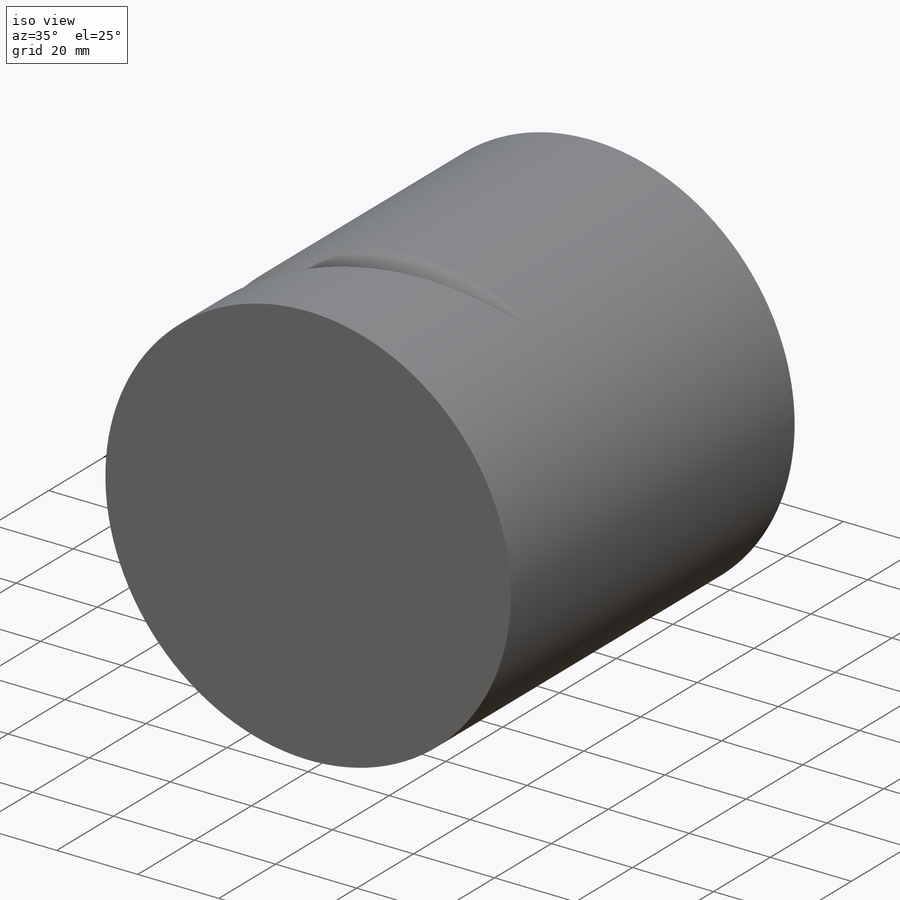
[diagram: iso view]
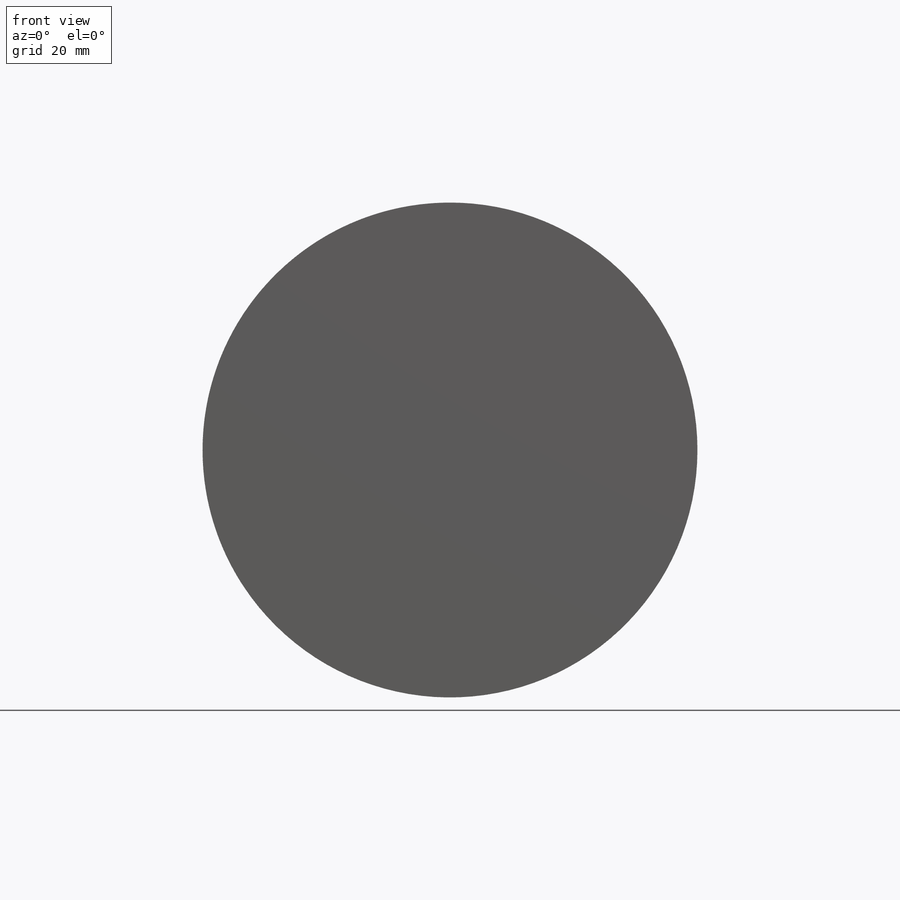
[diagram: front view]
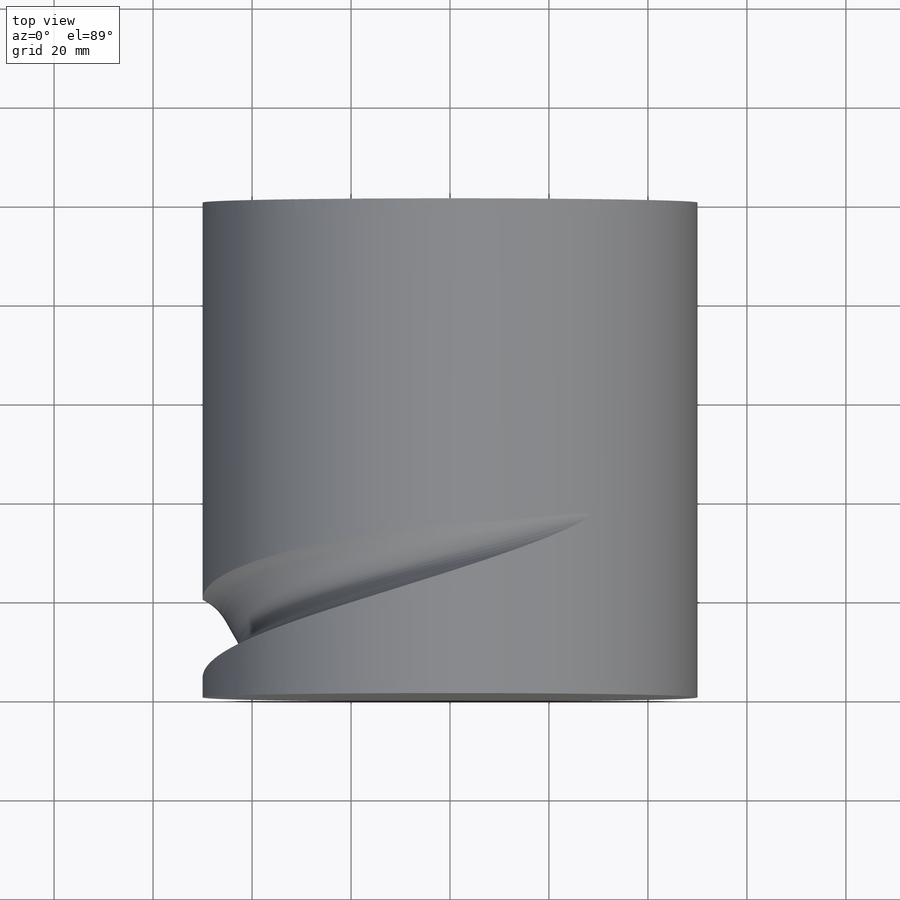
[diagram: top view]
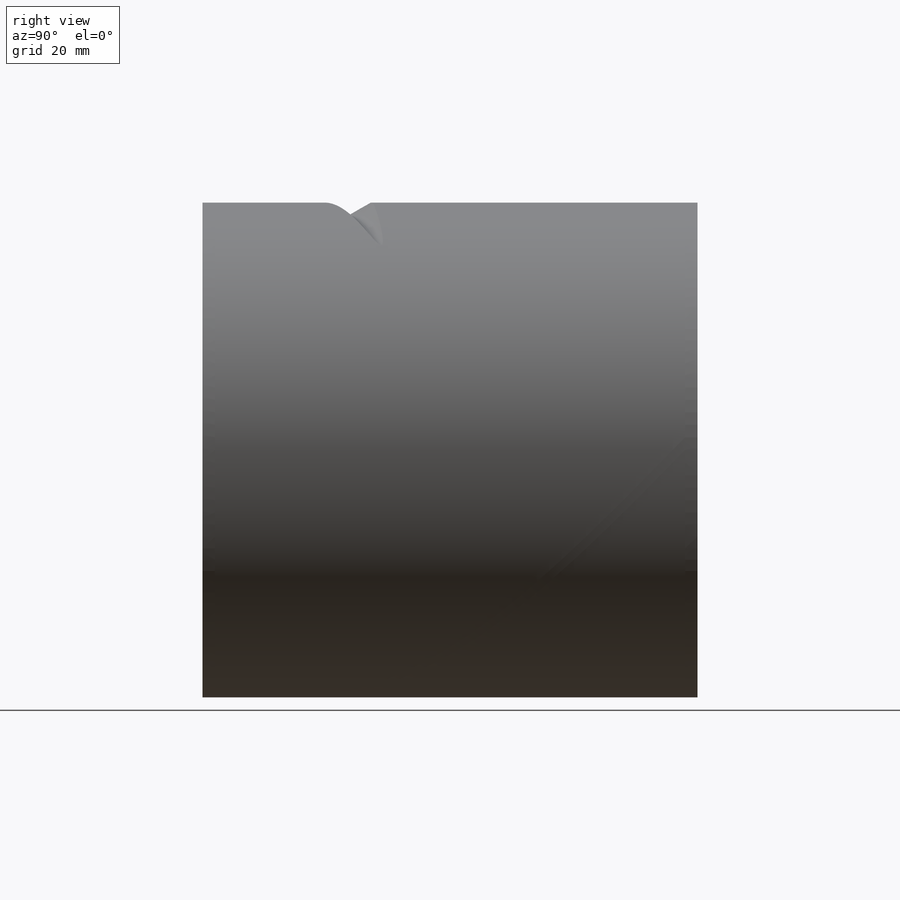
[diagram: right view]
SOLIDWORKS PART (.sldprt)
format: sldprt  version: not decoded by parser v0  size: 265,216 bytes
history: native  units: mm
features: sketch x4, plane x3, material x1, extrude x1, helix x1, sweep x1 (+12 scaffold rows collapsed)
feature tree (23):
  scaffold x12  (default folders/planes/origin — collapsed)
  material  "7075-T6, Plate (SS)"
  plane  "Ebene vorne"
  plane  "Ebene oben"
  plane  "Ebene rechts"
  sketch  "Skizze1"  dims[D1=100.0mm]
  extrude  "Linear austragen1"  Depth=100mm
  sketch  "Skizze2"  dims[c1.D2=110.0mm c1.D1=5.0mm c1.D3=50.0mm c2.D3=30.0deg]
  helix  "Spirale/Helix1"  Pitch=39.5mm
  sketch  "3D-Skizze1"  dims[D1=0.0mm]
  sketch  "Skizze3"  dims[D1=10.0mm]
  sweep  "Schnitt-Austragung1"
decode coverage: 6 of 7 modeling features carry decoded parameters
note: suppression state not decoded; provenance and decode notes live in map.json
